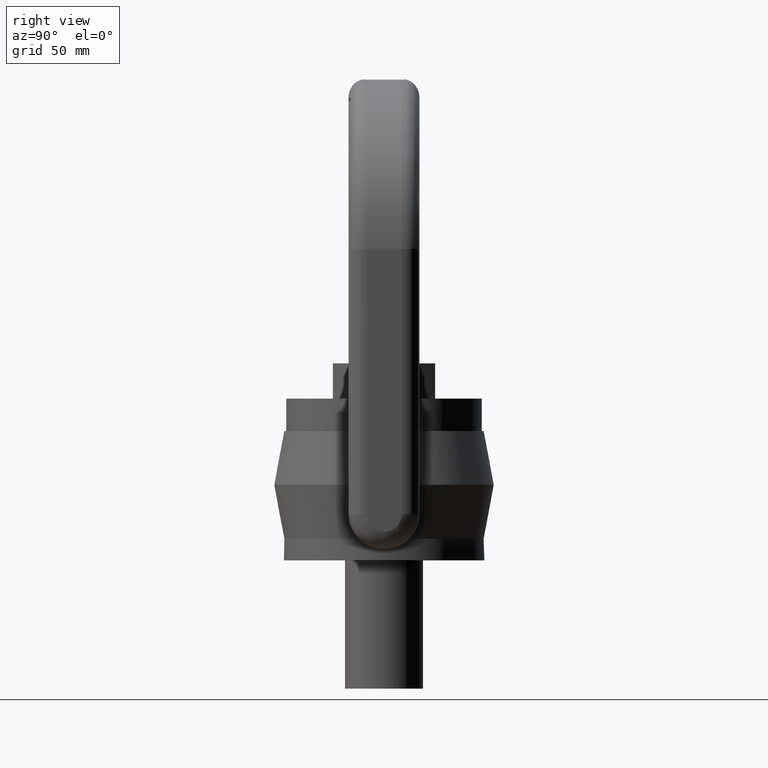
[diagram: clean part render]
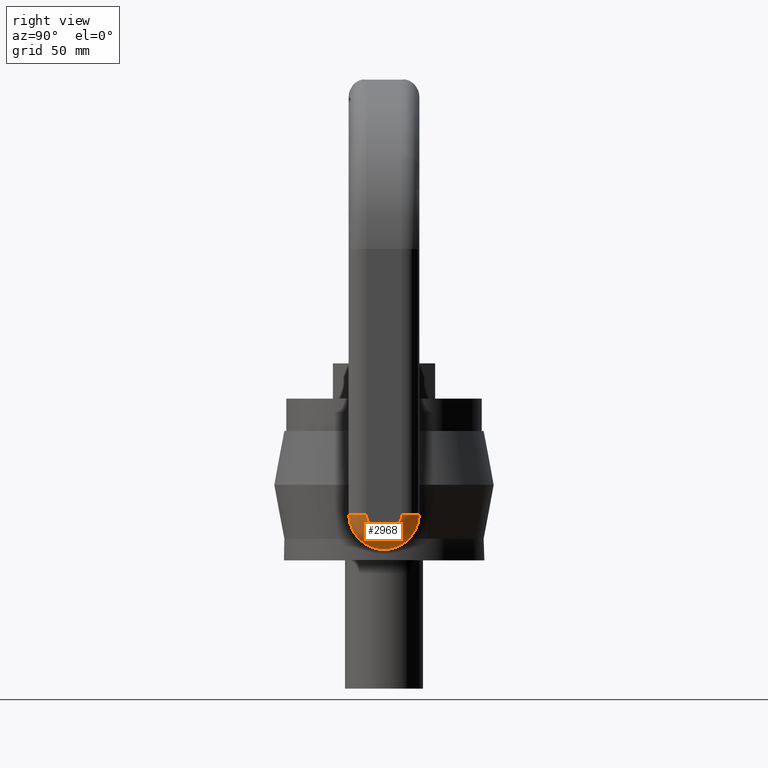
[diagram: same view with one face highlighted and labeled with its STEP entity id]
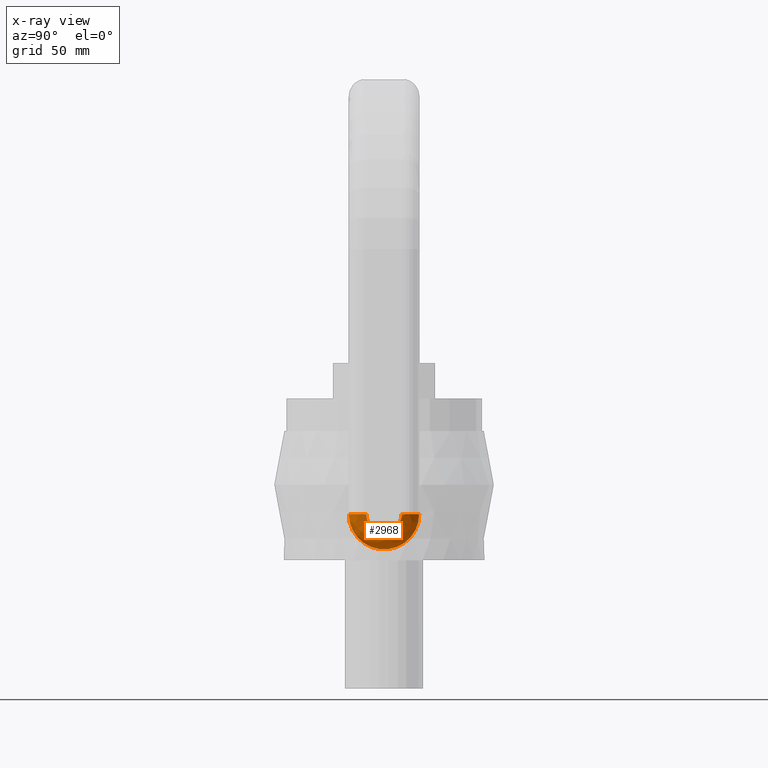
[diagram: x-ray of the same camera — body ghosted, the highlighted face saturated]
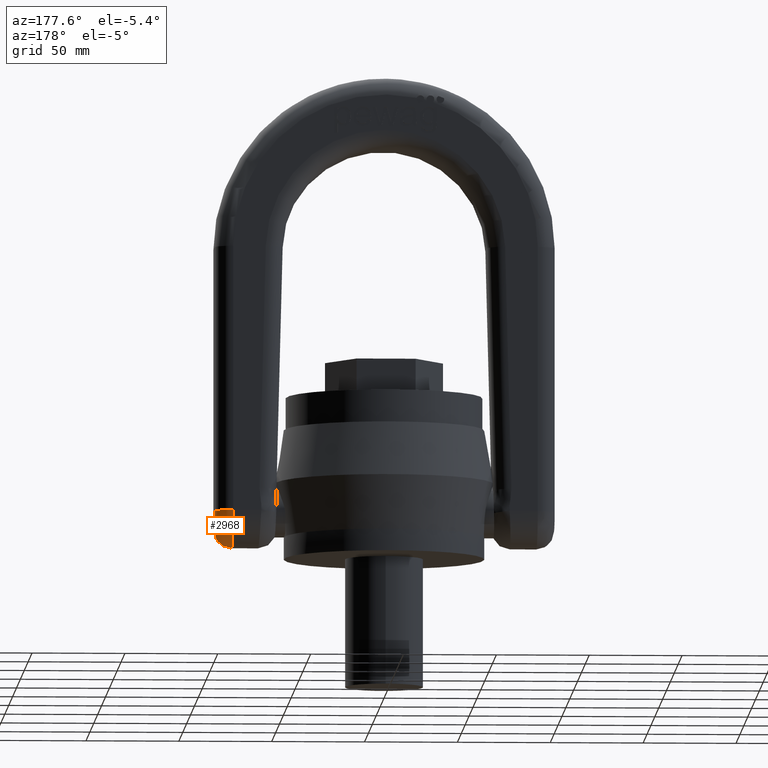
[diagram: same view with one face highlighted and labeled with its STEP entity id]
A machine part, right view. The second image highlights one B-rep face of the part: STEP entity #2968.
The next image is the same camera in x-ray: the body ghosted, the highlighted face saturated — about 0% of this face is hidden behind the body in this view.
A second angle (auxiliary view) of the same face is appended — the face is thin or edge-on in the first view.
In plain terms, the highlighted face is a freeform B-spline surface patch.
Its self-contained STEP definition (entity closure, byte-faithful):
#214=(
BOUNDED_SURFACE()
B_SPLINE_SURFACE(3,3,((#9609,#9610,#9611,#9612),(#9613,#9614,#9615,#9616),
(#9617,#9618,#9619,#9620),(#9621,#9622,#9623,#9624)),.UNSPECIFIED.,.F.,
 .F.,.F.)
B_SPLINE_SURFACE_WITH_KNOTS((4,4),(4,4),(0.,1.),(0.,1.),.UNSPECIFIED.)
GEOMETRIC_REPRESENTATION_ITEM()
RATIONAL_B_SPLINE_SURFACE(((1.,0.333333333333333,0.333333333333333,1.),
(0.804737854124364,0.268245951374788,0.268245951374788,0.804737854124364),
(0.804737854124364,0.268245951374788,0.268245951374788,0.804737854124364),
(1.,0.333333333333333,0.333333333333333,1.)))
REPRESENTATION_ITEM('')
SURFACE()
);
#2614=FACE_OUTER_BOUND('',#3324,.T.);
#2968=ADVANCED_FACE('',(#2614),#214,.T.);
#3324=EDGE_LOOP('',(#4493,#4494,#4495,#4496));
#4493=ORIENTED_EDGE('',*,*,#5535,.T.);
#4494=ORIENTED_EDGE('',*,*,#4992,.F.);
#4495=ORIENTED_EDGE('',*,*,#5536,.T.);
#4496=ORIENTED_EDGE('',*,*,#5089,.F.);
#4578=VERTEX_POINT('',#6700);
#4580=VERTEX_POINT('',#6715);
#4673=VERTEX_POINT('',#7088);
#4674=VERTEX_POINT('',#7089);
#4992=EDGE_CURVE('',#4580,#4578,#5557,.T.);
#5089=EDGE_CURVE('',#4673,#4674,#5568,.T.);
#5535=EDGE_CURVE('',#4673,#4578,#5591,.T.);
#5536=EDGE_CURVE('',#4580,#4674,#5592,.T.);
#5557=CIRCLE('',#5637,18.9999999999999);
#5568=CIRCLE('',#5657,9.49999999999993);
#5591=CIRCLE('',#5790,9.5);
#5592=CIRCLE('',#5792,9.5);
#5637=AXIS2_PLACEMENT_3D('',#6716,#5914,#5915);
#5657=AXIS2_PLACEMENT_3D('',#7087,#6001,#6002);
#5790=AXIS2_PLACEMENT_3D('',#9605,#6554,#6555);
#5792=AXIS2_PLACEMENT_3D('',#9607,#6558,#6559);
#5914=DIRECTION('',(-1.,0.,-4.29254185209232E-16));
#5915=DIRECTION('',(-7.30409884621816E-16,0.,1.));
#6001=DIRECTION('',(1.,0.,4.29254185209232E-16));
#6002=DIRECTION('',(0.,0.,1.));
#6554=DIRECTION('',(3.65204942310907E-16,-3.65204942310907E-16,-1.));
#6555=DIRECTION('',(-0.999999999999999,0.,-3.65204942310907E-16));
#6558=DIRECTION('',(0.,0.,-1.));
#6559=DIRECTION('',(-0.999999999999999,0.,0.));
#6700=CARTESIAN_POINT('',(82.,-19.,24.8499999999999));
#6715=CARTESIAN_POINT('',(82.,18.9999999999998,24.8499999999999));
#6716=CARTESIAN_POINT('',(82.,-9.77597511821928E-14,24.8499999999999));
#7087=CARTESIAN_POINT('',(91.5,-9.77597511821928E-14,24.8499999999999));
#7088=CARTESIAN_POINT('',(91.5,-9.5,24.8499999999999));
#7089=CARTESIAN_POINT('',(91.5,9.49999999999983,24.8499999999999));
#9605=CARTESIAN_POINT('',(82.,-9.5,24.8499999999999));
#9607=CARTESIAN_POINT('',(82.,9.49999999999981,24.8499999999999));
#9609=CARTESIAN_POINT('',(82.,18.9999999999998,24.8499999999999));
#9610=CARTESIAN_POINT('',(82.,18.9999999999998,-13.1499999999999));
#9611=CARTESIAN_POINT('',(82.,-19.,-13.15));
#9612=CARTESIAN_POINT('',(82.,-19.,24.8499999999999));
#9613=CARTESIAN_POINT('',(87.5649711574556,18.9999999999998,24.8499999999999));
#9614=CARTESIAN_POINT('',(87.5649711574556,18.9999999999999,-13.15));
#9615=CARTESIAN_POINT('',(87.5649711574556,-19.,-13.15));
#9616=CARTESIAN_POINT('',(87.5649711574556,-19.,24.8499999999999));
#9617=CARTESIAN_POINT('',(91.5,15.0649711574554,24.8499999999999));
#9618=CARTESIAN_POINT('',(91.5,15.0649711574554,-5.27994231491112));
#9619=CARTESIAN_POINT('',(91.5,-15.0649711574556,-5.27994231491113));
#9620=CARTESIAN_POINT('',(91.5,-15.0649711574556,24.8499999999999));
#9621=CARTESIAN_POINT('',(91.5,9.49999999999981,24.8499999999999));
#9622=CARTESIAN_POINT('',(91.5,9.49999999999981,5.8500000000001));
#9623=CARTESIAN_POINT('',(91.5,-9.49999999999999,5.85000000000009));
#9624=CARTESIAN_POINT('',(91.5,-9.5,24.8499999999999));